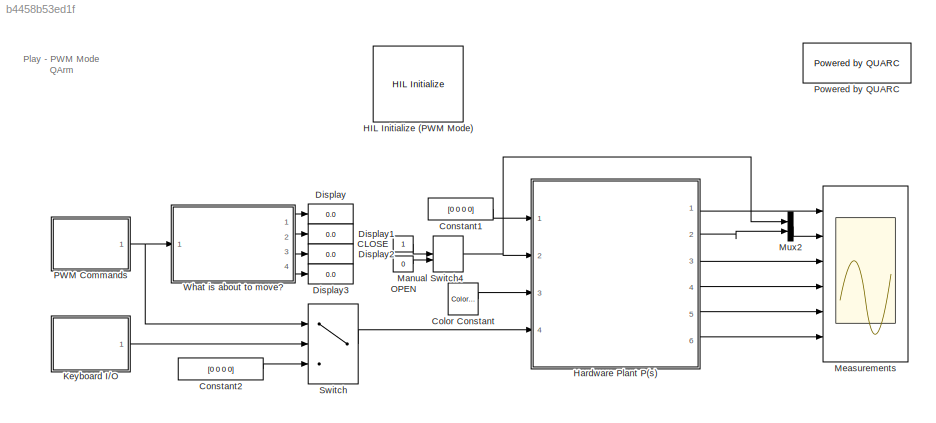
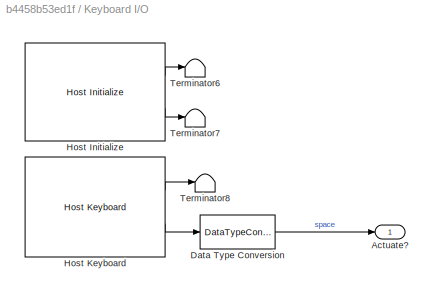
MODEL slx_b4458b53ed1f
KIND model
CONFIG AbsTol = auto
CONFIG EnableMultiTasking = on
CONFIG FixedStep = 1/500
CONFIG MaxStep = auto
CONFIG MinStep = auto
CONFIG RelTol = 1e-3
CONFIG SampleTimeConstraint = Unconstrained
CONFIG SolverName = ode4
CONFIG StartTime = 0.0
CONFIG StopTime = inf
BLOCK [Constant]  OPEN
  Value = 0
BLOCK [Constant] CLOSE 
  NameLocation = top
BLOCK [Reference] Color Constant  REF=quarc_library/Sources/Signals/Color Constant
  Ports = [0, 1]
  SourceBlock = quarc_library/Sources/Signals/Color Constant
  SourceProductName = QUARC Targets
  SourceType = Color Constant
BLOCK [Constant] Constant1
  Value = [0 0 0 0]
BLOCK [Constant] Constant2
  Value = [0 0 0 0]
BLOCK [Display] Display
  Decimation = 1
  Ports = [1]
BLOCK [Display] Display1
  Decimation = 1
  Ports = [1]
BLOCK [Display] Display2
  Decimation = 1
  Ports = [1]
BLOCK [Display] Display3
  Decimation = 1
  Ports = [1]
BLOCK [Reference] HIL Initialize (PWM Mode)  REF=quarc_library/Data Acquisition/Generic/Configuration/HIL Initialize
  AttributesFormatString = %<object_name> (%<board_type>-%<board_number>)
  Ports = []
  SourceBlock = quarc_library/Data Acquisition/Generic/Configuration/HIL Initialize
  SourceProductName = QUARC Targets
  SourceType = HIL Initialize
  UserDataPersistent = on
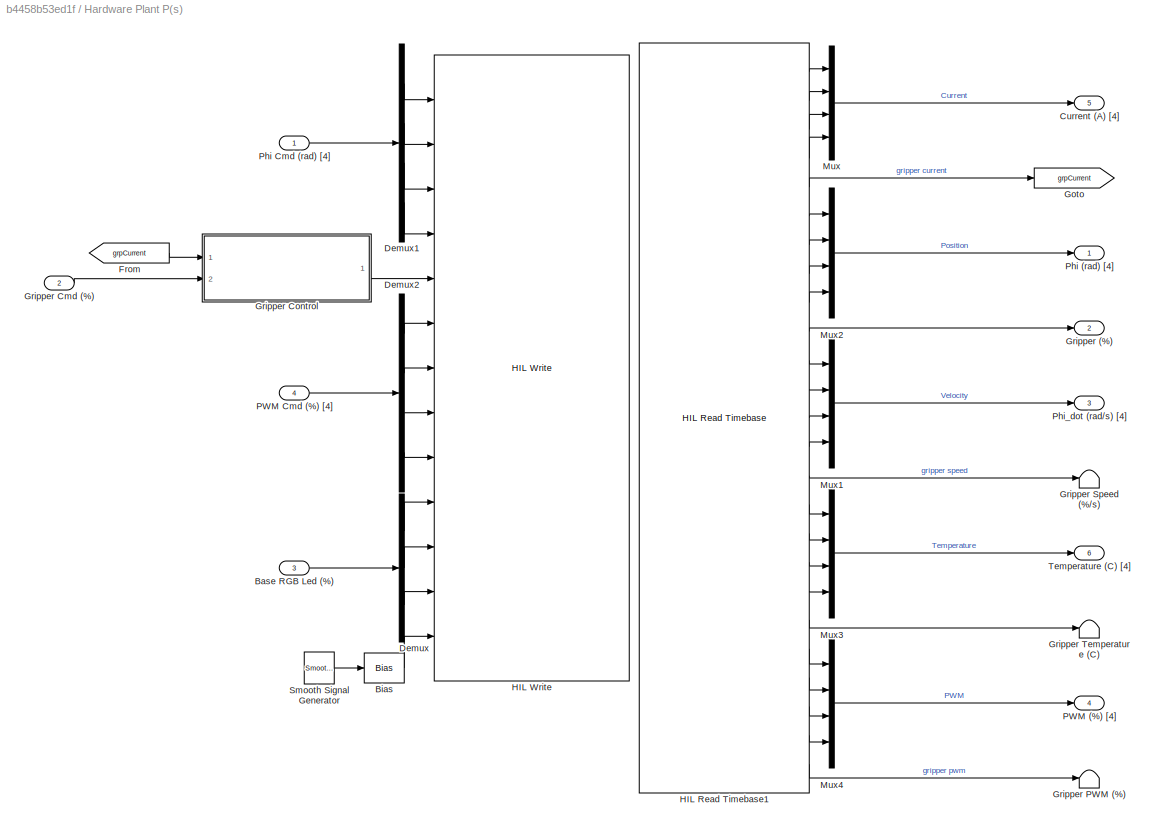
BLOCK [SubSystem] Hardware Plant P(s)
  Permissions = NoReadOrWrite
  Ports = [4, 6]
BLOCK [Inport] Hardware Plant P(s)/Base RGB Led (%)
  Port = 3
BLOCK [Bias] Hardware Plant P(s)/Bias
  Bias = 0.5
  SaturateOnIntegerOverflow = off
BLOCK [Outport] Hardware Plant P(s)/Current (A) [4]
  Port = 5
  VectorParamsAs1DForOutWhenUnconnected = off
BLOCK [Demux] Hardware Plant P(s)/Demux
  Outputs = 3
  Ports = [1, 3]
BLOCK [Demux] Hardware Plant P(s)/Demux1
  Ports = [1, 4]
BLOCK [Demux] Hardware Plant P(s)/Demux2
  Ports = [1, 4]
BLOCK [From] Hardware Plant P(s)/From
  GotoTag = grpCurrent
BLOCK [Goto] Hardware Plant P(s)/Goto
  GotoTag = grpCurrent
BLOCK [Outport] Hardware Plant P(s)/Gripper (%)
  Port = 2
  VectorParamsAs1DForOutWhenUnconnected = off
BLOCK [Inport] Hardware Plant P(s)/Gripper Cmd (%)
  Port = 2
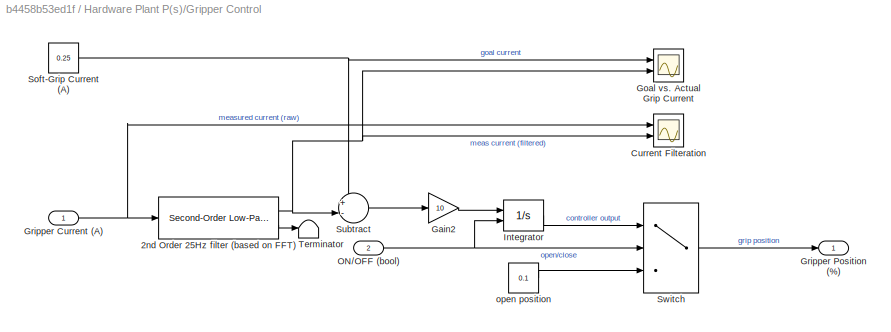
BLOCK [SubSystem] Hardware Plant P(s)/Gripper Control
  Ports = [2, 1]
BLOCK [Reference] Hardware Plant P(s)/Gripper Control/2nd Order 25Hz filter (based on FFT)  REF=quarc_library/Continuous/Second-Order
Low-Pass Filter
  Ports = [1, 2]
  SourceBlock = quarc_library/Continuous/Second-Order\nLow-Pass Filter
  SourceProductName = QUARC Targets
  SourceType = Second-Order Low-Pass Filter
BLOCK [Scope] Hardware Plant P(s)/Gripper Control/Current Filteration
  Floating = off
  NameLocation = top
  NumInputPorts = 2
  Ports = [2]
  ScopeSpecificationString = Simulink.scopes.TimeScopeBlockCfg('CurrentConfiguration', extmgr.ConfigurationSet(extmgr.Configuration('Core','General UI',true),extmgr.Configuration('Core','Source UI',true),extmgr.Configuration('Sources','WiredSimulink',true,'DataLoggingVariableName','ScopeData5'),extmgr.Configuration('Visuals','Time Domain',true,'SerializedDisplays',{struct('MinYLimReal','-0.01447','MaxYLimReal','0.62651','YLab...<+1429ch>
BLOCK [Gain] Hardware Plant P(s)/Gripper Control/Gain2
  Gain = 10
BLOCK [Scope] Hardware Plant P(s)/Gripper Control/Goal vs. Actual Grip Current
  Floating = off
  NameLocation = top
  NumInputPorts = 2
  Ports = [2]
  ScopeSpecificationString = Simulink.scopes.TimeScopeBlockCfg('CurrentConfiguration', extmgr.ConfigurationSet(extmgr.Configuration('Core','General UI',true),extmgr.Configuration('Core','Source UI',true),extmgr.Configuration('Sources','WiredSimulink',true,'DataLoggingVariableName','ScopeData4'),extmgr.Configuration('Visuals','Time Domain',true,'SerializedDisplays',{struct('MinYLimReal','0.00229','MaxYLimReal','0.27702','YLabe...<+1426ch>
BLOCK [Inport] Hardware Plant P(s)/Gripper Control/Gripper Current (A)
BLOCK [Outport] Hardware Plant P(s)/Gripper Control/Gripper Position (%)
  VectorParamsAs1DForOutWhenUnconnected = off
BLOCK [Integrator] Hardware Plant P(s)/Gripper Control/Integrator
  ExternalReset = either
  InitialCondition = 0.1
  LimitOutput = on
  LowerSaturationLimit = 0.1
  Ports = [2, 1]
  UpperSaturationLimit = 0.9
BLOCK [Inport] Hardware Plant P(s)/Gripper Control/ON//OFF (bool)
  Port = 2
BLOCK [Constant] Hardware Plant P(s)/Gripper Control/Soft-Grip Current (A)
  Value = 0.25
BLOCK [Sum] Hardware Plant P(s)/Gripper Control/Subtract
  Inputs = +-|
  Ports = [2, 1]
BLOCK [Switch] Hardware Plant P(s)/Gripper Control/Switch
  Criteria = u2 > Threshold
  InputSameDT = off
  SaturateOnIntegerOverflow = off
BLOCK [Terminator] Hardware Plant P(s)/Gripper Control/Terminator
BLOCK [Constant] Hardware Plant P(s)/Gripper Control/open position
  Value = 0.1
BLOCK [Terminator] Hardware Plant P(s)/Gripper PWM (%)
BLOCK [Terminator] Hardware Plant P(s)/Gripper Speed (%//s)
BLOCK [Terminator] Hardware Plant P(s)/Gripper Temperature (C)
BLOCK [Reference] Hardware Plant P(s)/HIL Read Timebase1  REF=quarc_library/Data Acquisition/Generic/Timebases/HIL Read
Timebase
  AttributesFormatString = (%<object_name>)
  Ports = [0, 25]
  SourceBlock = quarc_library/Data Acquisition/Generic/Timebases/HIL Read\nTimebase
  SourceProductName = QUARC Targets
  SourceType = HIL Read Timebase
  UserDataPersistent = on
BLOCK [Reference] Hardware Plant P(s)/HIL Write  REF=quarc_library/Data Acquisition/Generic/Immediate I//O/HIL Write
  AttributesFormatString = (%<object_name>)
  Ports = [13]
  SourceBlock = quarc_library/Data Acquisition/Generic/Immediate I//O/HIL Write
  SourceProductName = QUARC Targets
  SourceType = HIL Write
  UserDataPersistent = on
BLOCK [Mux] Hardware Plant P(s)/Mux
  DisplayOption = bar
  Ports = [4, 1]
BLOCK [Mux] Hardware Plant P(s)/Mux1
  DisplayOption = bar
  Ports = [4, 1]
BLOCK [Mux] Hardware Plant P(s)/Mux2
  DisplayOption = bar
  Ports = [4, 1]
BLOCK [Mux] Hardware Plant P(s)/Mux3
  DisplayOption = bar
  Ports = [4, 1]
BLOCK [Mux] Hardware Plant P(s)/Mux4
  DisplayOption = bar
  Ports = [4, 1]
BLOCK [Outport] Hardware Plant P(s)/PWM (%) [4]
  Port = 4
  VectorParamsAs1DForOutWhenUnconnected = off
BLOCK [Inport] Hardware Plant P(s)/PWM Cmd (%) [4]
  Port = 4
BLOCK [Outport] Hardware Plant P(s)/Phi (rad) [4]
  VectorParamsAs1DForOutWhenUnconnected = off
BLOCK [Inport] Hardware Plant P(s)/Phi Cmd (rad) [4]
BLOCK [Outport] Hardware Plant P(s)/Phi_dot (rad//s) [4]
  Port = 3
  VectorParamsAs1DForOutWhenUnconnected = off
BLOCK [Reference] Hardware Plant P(s)/Smooth Signal Generator  REF=quarc_library/Sources/Signals/Smooth Signal
Generator
  Ports = [0, 1]
  SourceBlock = quarc_library/Sources/Signals/Smooth Signal\nGenerator
  SourceProductName = QUARC Targets
  SourceType = Smooth Signal Generator
BLOCK [Outport] Hardware Plant P(s)/Temperature (C) [4]
  Port = 6
  VectorParamsAs1DForOutWhenUnconnected = off
BLOCK [SubSystem] Keyboard I//O
  Ports = [0, 1]
BLOCK [Outport] Keyboard I//O/Actuate?
  VectorParamsAs1DForOutWhenUnconnected = off
BLOCK [DataTypeConversion] Keyboard I//O/Data Type Conversion
  OutDataTypeStr = double
  RndMeth = Floor
  SaturateOnIntegerOverflow = off
BLOCK [Reference] Keyboard I//O/Host Initialize  REF=quarc_library/Devices/Peripherals/Host/Host Initialize
  Ports = [0, 2]
  SourceBlock = quarc_library/Devices/Peripherals/Host/Host Initialize
  SourceProductName = QUARC Targets
  SourceType = Host Initialize
BLOCK [Reference] Keyboard I//O/Host Keyboard  REF=quarc_library/Devices/Peripherals/Host/Host Keyboard
  Ports = [0, 2]
  SourceBlock = quarc_library/Devices/Peripherals/Host/Host Keyboard
  SourceProductName = QUARC Targets
  SourceType = Host Keyboard
BLOCK [Terminator] Keyboard I//O/Terminator6
BLOCK [Terminator] Keyboard I//O/Terminator7
BLOCK [Terminator] Keyboard I//O/Terminator8
BLOCK [ManualSwitch] Manual Switch4
  CurrentSetting = 0
BLOCK [Scope] Measurements
  Floating = off
  NumInputPorts = 6
  Ports = [6]
  ScopeSpecificationString = Simulink.scopes.TimeScopeBlockCfg('CurrentConfiguration', extmgr.ConfigurationSet(extmgr.Configuration('Core','General UI',true),extmgr.Configuration('Core','Source UI',true),extmgr.Configuration('Sources','WiredSimulink',true,'DataLoggingVariableName','ScopeData1'),extmgr.Configuration('Visuals','Time Domain',true,'SerializedDisplays',{struct('MinYLimReal','-0.98259','MaxYLimReal','0.98827','YLab...<+5326ch>
BLOCK [Mux] Mux2
  DisplayOption = bar
  Inputs = 2
  Ports = [2, 1]
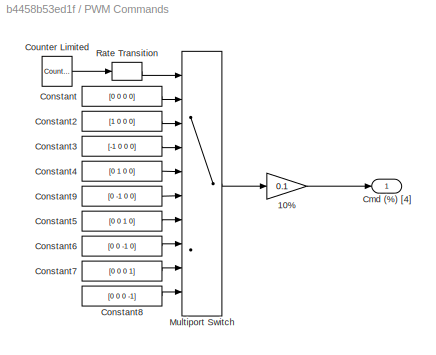
BLOCK [SubSystem] PWM Commands
  Ports = [0, 1]
BLOCK [Gain] PWM Commands/10% 
  Gain = 0.1
  NameLocation = top
BLOCK [Outport] PWM Commands/Cmd (%) [4]
  VectorParamsAs1DForOutWhenUnconnected = off
BLOCK [Constant] PWM Commands/Constant
  Value = [0 0 0 0]
BLOCK [Constant] PWM Commands/Constant2
  Value = [1 0 0 0]
BLOCK [Constant] PWM Commands/Constant3
  Value = [-1 0 0 0]
BLOCK [Constant] PWM Commands/Constant4
  Value = [0 1 0 0]
BLOCK [Constant] PWM Commands/Constant5
  Value = [0 0 1 0]
BLOCK [Constant] PWM Commands/Constant6
  Value = [0 0 -1 0]
BLOCK [Constant] PWM Commands/Constant7
  Value = [0 0 0 1]
BLOCK [Constant] PWM Commands/Constant8
  Value = [0 0 0 -1]
BLOCK [Constant] PWM Commands/Constant9
  Value = [0 -1 0 0]
BLOCK [Reference] PWM Commands/Counter Limited  REF=simulink/Sources/Counter
Limited
  Ports = [0, 1]
  SourceBlock = simulink/Sources/Counter\nLimited
  SourceType = Counter Limited
BLOCK [MultiPortSwitch] PWM Commands/Multiport Switch
  DataPortOrder = Zero-based contiguous
  InputSameDT = off
  Inputs = 9
  Ports = [10, 1]
  SaturateOnIntegerOverflow = off
  zeroidx = on
BLOCK [RateTransition] PWM Commands/Rate Transition
BLOCK [Reference] Powered by QUARC  REF=quarc_library/Logos/Powered by QUARC
  Ports = []
  SourceBlock = quarc_library/Logos/Powered by QUARC
  SourceProductName = QUARC Targets
  SourceType = Powered by QUARC
BLOCK [Switch] Switch
  Criteria = u2 > Threshold
  InputSameDT = off
  SaturateOnIntegerOverflow = off
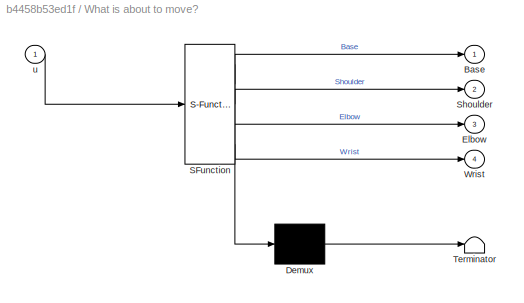
BLOCK [SubSystem] What is about to move?
  ErrorFcn = Stateflow.Translate.translate
  PermitHierarchicalResolution = ExplicitOnly
  Ports = [1, 4]
  SFBlockType = MATLAB Function
  TreatAsAtomicUnit = on
BLOCK [Demux] What is about to move?/ Demux 
  Outputs = 1
  Ports = [1, 1]
BLOCK [S-Function] What is about to move?/ SFunction 
  EnableBusSupport = off
  FunctionName = sf_sfun
  PortCounts = [1 5]
  Ports = [1, 5]
  SFcnIsStateOwnerBlock = off
  SFunctionDeploymentMode = off
  Tag = Stateflow S-Function 2
BLOCK [Terminator] What is about to move?/ Terminator 
BLOCK [Outport] What is about to move?/Base
  VectorParamsAs1DForOutWhenUnconnected = off
BLOCK [Outport] What is about to move?/Elbow
  Port = 3
  VectorParamsAs1DForOutWhenUnconnected = off
BLOCK [Outport] What is about to move?/Shoulder
  Port = 2
  VectorParamsAs1DForOutWhenUnconnected = off
BLOCK [Outport] What is about to move?/Wrist
  Port = 4
  VectorParamsAs1DForOutWhenUnconnected = off
BLOCK [Inport] What is about to move?/u
ANNOTATION (root): Play - PWM Mode QArm
LINE  OPEN:1 -> Manual Switch4:2
LINE CLOSE :1 -> Manual Switch4:1
LINE Color Constant:1 -> Hardware Plant P(s):3
LINE Constant1:1 -> Hardware Plant P(s):1
LINE Constant2:1 -> Switch:3
LINE Hardware Plant P(s)/Base RGB Led (%):1 -> Hardware Plant P(s)/Demux:1
LINE Hardware Plant P(s)/Bias:1 -> Hardware Plant P(s)/HIL Write:13
LINE Hardware Plant P(s)/Demux1:1 -> Hardware Plant P(s)/HIL Write:1
LINE Hardware Plant P(s)/Demux1:2 -> Hardware Plant P(s)/HIL Write:2
LINE Hardware Plant P(s)/Demux1:3 -> Hardware Plant P(s)/HIL Write:3
LINE Hardware Plant P(s)/Demux1:4 -> Hardware Plant P(s)/HIL Write:4
LINE Hardware Plant P(s)/Demux2:1 -> Hardware Plant P(s)/HIL Write:6
LINE Hardware Plant P(s)/Demux2:2 -> Hardware Plant P(s)/HIL Write:7
LINE Hardware Plant P(s)/Demux2:3 -> Hardware Plant P(s)/HIL Write:8
LINE Hardware Plant P(s)/Demux2:4 -> Hardware Plant P(s)/HIL Write:9
LINE Hardware Plant P(s)/Demux:1 -> Hardware Plant P(s)/HIL Write:10
LINE Hardware Plant P(s)/Demux:2 -> Hardware Plant P(s)/HIL Write:11
LINE Hardware Plant P(s)/Demux:3 -> Hardware Plant P(s)/HIL Write:12
LINE Hardware Plant P(s)/From:1 -> Hardware Plant P(s)/Gripper Control:1
LINE Hardware Plant P(s)/Gripper Cmd (%):1 -> Hardware Plant P(s)/Gripper Control:2
NET Hardware Plant P(s)/Gripper Control/2nd Order 25Hz filter (based on FFT):1 -> Hardware Plant P(s)/Gripper Control/Current Filteration:2, Hardware Plant P(s)/Gripper Control/Goal vs. Actual Grip Current:2, Hardware Plant P(s)/Gripper Control/Subtract:2
LINE Hardware Plant P(s)/Gripper Control/2nd Order 25Hz filter (based on FFT):2 -> Hardware Plant P(s)/Gripper Control/Terminator:1
LINE Hardware Plant P(s)/Gripper Control/Gain2:1 -> Hardware Plant P(s)/Gripper Control/Integrator:1
NET Hardware Plant P(s)/Gripper Control/Gripper Current (A):1 -> Hardware Plant P(s)/Gripper Control/2nd Order 25Hz filter (based on FFT):1, Hardware Plant P(s)/Gripper Control/Current Filteration:1
LINE Hardware Plant P(s)/Gripper Control/Integrator:1 -> Hardware Plant P(s)/Gripper Control/Switch:1
NET Hardware Plant P(s)/Gripper Control/ON//OFF (bool):1 -> Hardware Plant P(s)/Gripper Control/Integrator:2, Hardware Plant P(s)/Gripper Control/Switch:2
NET Hardware Plant P(s)/Gripper Control/Soft-Grip Current (A):1 -> Hardware Plant P(s)/Gripper Control/Goal vs. Actual Grip Current:1, Hardware Plant P(s)/Gripper Control/Subtract:1
LINE Hardware Plant P(s)/Gripper Control/Subtract:1 -> Hardware Plant P(s)/Gripper Control/Gain2:1
LINE Hardware Plant P(s)/Gripper Control/Switch:1 -> Hardware Plant P(s)/Gripper Control/Gripper Position (%):1
LINE Hardware Plant P(s)/Gripper Control/open position:1 -> Hardware Plant P(s)/Gripper Control/Switch:3
LINE Hardware Plant P(s)/Gripper Control:1 -> Hardware Plant P(s)/HIL Write:5
LINE Hardware Plant P(s)/HIL Read Timebase1:1 -> Hardware Plant P(s)/Mux:1
LINE Hardware Plant P(s)/HIL Read Timebase1:10 -> Hardware Plant P(s)/Gripper (%):1
LINE Hardware Plant P(s)/HIL Read Timebase1:11 -> Hardware Plant P(s)/Mux1:1
LINE Hardware Plant P(s)/HIL Read Timebase1:12 -> Hardware Plant P(s)/Mux1:2
LINE Hardware Plant P(s)/HIL Read Timebase1:13 -> Hardware Plant P(s)/Mux1:3
LINE Hardware Plant P(s)/HIL Read Timebase1:14 -> Hardware Plant P(s)/Mux1:4
LINE Hardware Plant P(s)/HIL Read Timebase1:15 -> Hardware Plant P(s)/Gripper Speed (%//s):1
LINE Hardware Plant P(s)/HIL Read Timebase1:16 -> Hardware Plant P(s)/Mux3:1
LINE Hardware Plant P(s)/HIL Read Timebase1:17 -> Hardware Plant P(s)/Mux3:2
LINE Hardware Plant P(s)/HIL Read Timebase1:18 -> Hardware Plant P(s)/Mux3:3
LINE Hardware Plant P(s)/HIL Read Timebase1:19 -> Hardware Plant P(s)/Mux3:4
LINE Hardware Plant P(s)/HIL Read Timebase1:2 -> Hardware Plant P(s)/Mux:2
LINE Hardware Plant P(s)/HIL Read Timebase1:20 -> Hardware Plant P(s)/Gripper Temperature (C):1
LINE Hardware Plant P(s)/HIL Read Timebase1:21 -> Hardware Plant P(s)/Mux4:1
LINE Hardware Plant P(s)/HIL Read Timebase1:22 -> Hardware Plant P(s)/Mux4:2
LINE Hardware Plant P(s)/HIL Read Timebase1:23 -> Hardware Plant P(s)/Mux4:3
LINE Hardware Plant P(s)/HIL Read Timebase1:24 -> Hardware Plant P(s)/Mux4:4
LINE Hardware Plant P(s)/HIL Read Timebase1:25 -> Hardware Plant P(s)/Gripper PWM (%):1
LINE Hardware Plant P(s)/HIL Read Timebase1:3 -> Hardware Plant P(s)/Mux:3
LINE Hardware Plant P(s)/HIL Read Timebase1:4 -> Hardware Plant P(s)/Mux:4
LINE Hardware Plant P(s)/HIL Read Timebase1:5 -> Hardware Plant P(s)/Goto:1
LINE Hardware Plant P(s)/HIL Read Timebase1:6 -> Hardware Plant P(s)/Mux2:1
LINE Hardware Plant P(s)/HIL Read Timebase1:7 -> Hardware Plant P(s)/Mux2:2
LINE Hardware Plant P(s)/HIL Read Timebase1:8 -> Hardware Plant P(s)/Mux2:3
LINE Hardware Plant P(s)/HIL Read Timebase1:9 -> Hardware Plant P(s)/Mux2:4
LINE Hardware Plant P(s)/Mux1:1 -> Hardware Plant P(s)/Phi_dot (rad//s) [4]:1
LINE Hardware Plant P(s)/Mux2:1 -> Hardware Plant P(s)/Phi (rad) [4]:1
LINE Hardware Plant P(s)/Mux3:1 -> Hardware Plant P(s)/Temperature (C) [4]:1
LINE Hardware Plant P(s)/Mux4:1 -> Hardware Plant P(s)/PWM (%) [4]:1
LINE Hardware Plant P(s)/Mux:1 -> Hardware Plant P(s)/Current (A) [4]:1
LINE Hardware Plant P(s)/PWM Cmd (%) [4]:1 -> Hardware Plant P(s)/Demux2:1
LINE Hardware Plant P(s)/Phi Cmd (rad) [4]:1 -> Hardware Plant P(s)/Demux1:1
LINE Hardware Plant P(s)/Smooth Signal Generator:1 -> Hardware Plant P(s)/Bias:1
LINE Hardware Plant P(s):1 -> Measurements:1
LINE Hardware Plant P(s):2 -> Mux2:2
LINE Hardware Plant P(s):3 -> Measurements:3
LINE Hardware Plant P(s):4 -> Measurements:4
LINE Hardware Plant P(s):5 -> Measurements:5
LINE Hardware Plant P(s):6 -> Measurements:6
LINE Keyboard I//O/Data Type Conversion:1 -> Keyboard I//O/Actuate?:1
LINE Keyboard I//O/Host Initialize:1 -> Keyboard I//O/Terminator6:1
LINE Keyboard I//O/Host Initialize:2 -> Keyboard I//O/Terminator7:1
LINE Keyboard I//O/Host Keyboard:1 -> Keyboard I//O/Terminator8:1
LINE Keyboard I//O/Host Keyboard:2 -> Keyboard I//O/Data Type Conversion:1
LINE Keyboard I//O:1 -> Switch:2
NET Manual Switch4:1 -> Hardware Plant P(s):2, Mux2:1
LINE Mux2:1 -> Measurements:2
LINE PWM Commands/10% :1 -> PWM Commands/Cmd (%) [4]:1
LINE PWM Commands/Constant2:1 -> PWM Commands/Multiport Switch:3
LINE PWM Commands/Constant3:1 -> PWM Commands/Multiport Switch:4
LINE PWM Commands/Constant4:1 -> PWM Commands/Multiport Switch:5
LINE PWM Commands/Constant5:1 -> PWM Commands/Multiport Switch:7
LINE PWM Commands/Constant6:1 -> PWM Commands/Multiport Switch:8
LINE PWM Commands/Constant7:1 -> PWM Commands/Multiport Switch:9
LINE PWM Commands/Constant8:1 -> PWM Commands/Multiport Switch:10
LINE PWM Commands/Constant9:1 -> PWM Commands/Multiport Switch:6
LINE PWM Commands/Constant:1 -> PWM Commands/Multiport Switch:2
LINE PWM Commands/Counter Limited:1 -> PWM Commands/Rate Transition:1
LINE PWM Commands/Multiport Switch:1 -> PWM Commands/10% :1
LINE PWM Commands/Rate Transition:1 -> PWM Commands/Multiport Switch:1
NET PWM Commands:1 -> Switch:1, What is about to move?:1
LINE Switch:1 -> Hardware Plant P(s):4
LINE What is about to move?:1 -> Display:1
LINE What is about to move?:2 -> Display1:1
LINE What is about to move?:3 -> Display2:1
LINE What is about to move?:4 -> Display3:1
note: NET lines group one-source signal fan-out (src -> all destinations, sorted); 1:1 wires keep LINE
CHART What is about to move? states=1 transitions=1
  STATE_LABEL 'eML_blk_kernel()'
  STATE_LABEL 'SCRIPT:\nfunction [Base, Shoulder, Elbow, Wrist] = fcn(u)\n\nBase = sign(u(1)).*(u(1)~=0);\nShoulder = sign(u(2)).*(u(2)~=0);\nElbow = sign(u(3)).*(u(3)~=0);\nWrist = sign(u(4)).*(u(4)~=0);\n'
CHART  states=0 transitions=0
